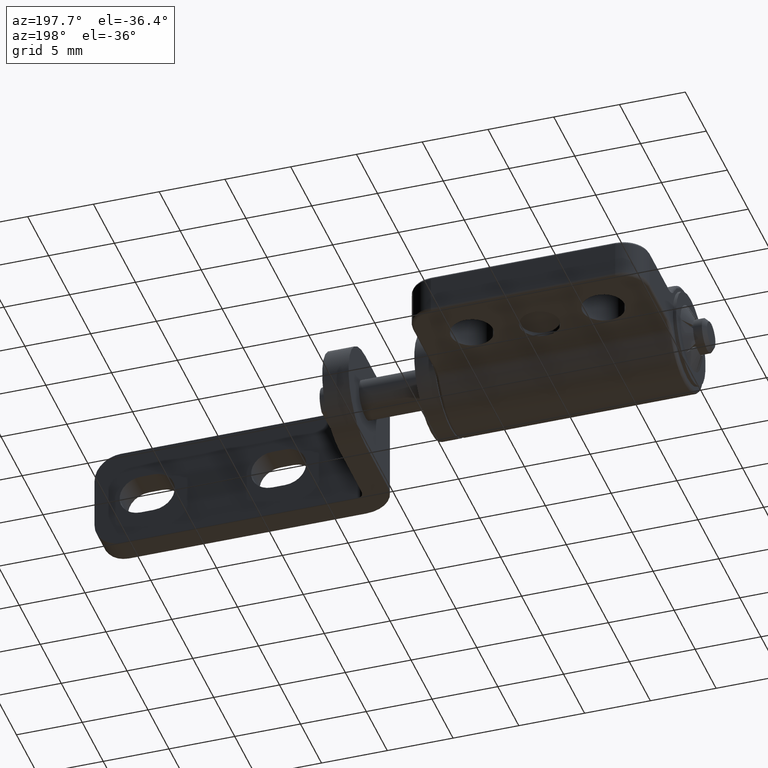
[diagram: clean part render]
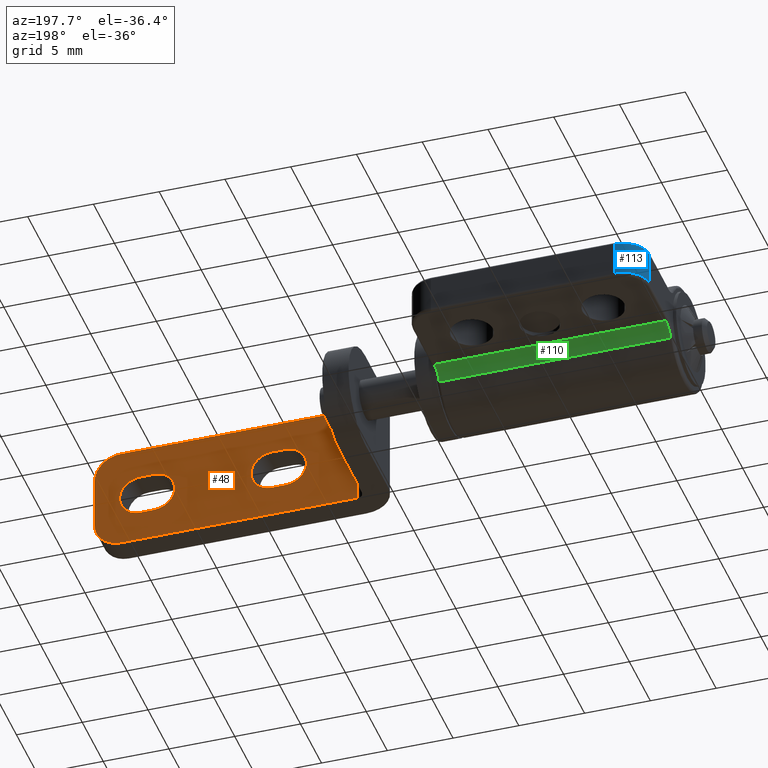
[diagram: same view with three faces highlighted in distinct colors, each labeled with its STEP entity id]
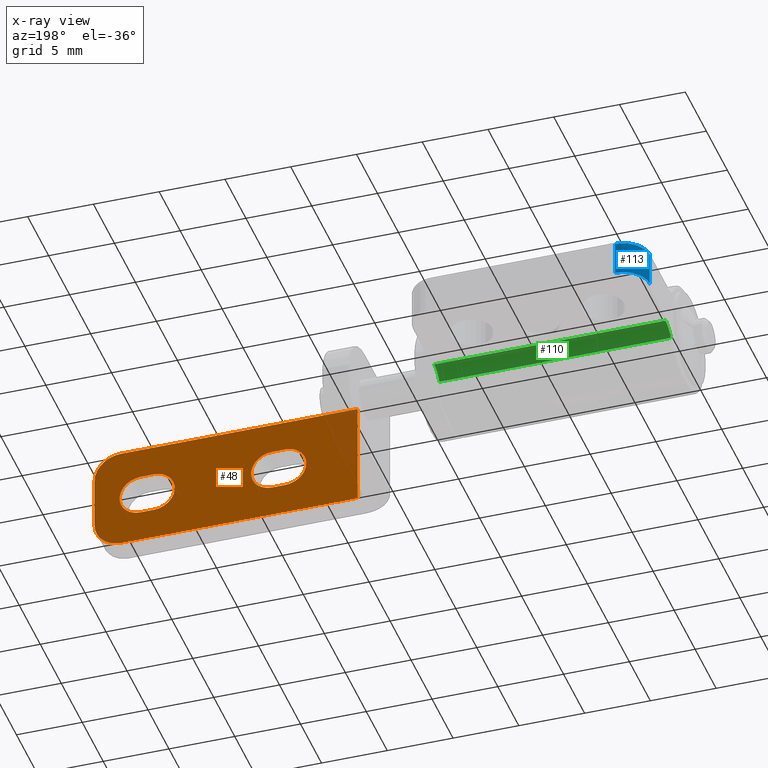
[diagram: x-ray of the same camera — body ghosted, the three highlighted faces saturated]
A machine part, auxiliary view with three faces highlighted in distinct colors.
The next image is the same camera in x-ray (body ghosted, the three faces saturated) — at least one of them is partly hidden behind the body in this view.
Their STEP definitions:

[orange] entity #48 — the highlighted planar face has unit normal (0, 1, 0).
#48=ADVANCED_FACE('',(#294,#295,#296),#293,.T.);
#293=PLANE('',#1991);
#294=FACE_OUTER_BOUND('',#1992,.T.);
#295=FACE_BOUND('',#1993,.T.);
#296=FACE_BOUND('',#1994,.T.);
#1988=CARTESIAN_POINT('',(1.60000000000E+01,-6.00000000000E+00,-4.80000000000E+00));
#1989=DIRECTION('',(0.00000000000E+00,1.00000000000E+00,6.73964954926E-17));
#1990=DIRECTION('',(0.00000000000E+00,-6.73964954926E-17,1.00000000000E+00));
#1991=AXIS2_PLACEMENT_3D('',#1988,#1989,#1990);
#1992=EDGE_LOOP('',(#3192,#3193,#3194,#3195,#3196,#3197));
#1993=EDGE_LOOP('',(#3198,#3199,#3200,#3201));
#1994=EDGE_LOOP('',(#3202,#3203,#3204,#3205));
#3192=ORIENTED_EDGE('',*,*,#4111,.F.);
#3193=ORIENTED_EDGE('',*,*,#4121,.T.);
#3194=ORIENTED_EDGE('',*,*,#4142,.F.);
#3195=ORIENTED_EDGE('',*,*,#4136,.T.);
#3196=ORIENTED_EDGE('',*,*,#4133,.F.);
#3197=ORIENTED_EDGE('',*,*,#4143,.T.);
#3198=ORIENTED_EDGE('',*,*,#4144,.T.);
#3199=ORIENTED_EDGE('',*,*,#4145,.T.);
#3200=ORIENTED_EDGE('',*,*,#4146,.T.);
#3201=ORIENTED_EDGE('',*,*,#4147,.T.);
#3202=ORIENTED_EDGE('',*,*,#4148,.T.);
#3203=ORIENTED_EDGE('',*,*,#4149,.T.);
#3204=ORIENTED_EDGE('',*,*,#4150,.T.);
#3205=ORIENTED_EDGE('',*,*,#4109,.T.);
#4109=EDGE_CURVE('',#4654,#4647,#4655,.T.);
#4111=EDGE_CURVE('',#4667,#4668,#4669,.T.);
#4121=EDGE_CURVE('',#4667,#4730,#4737,.T.);
#4133=EDGE_CURVE('',#4818,#4819,#4820,.T.);
#4136=EDGE_CURVE('',#4838,#4819,#4839,.T.);
#4142=EDGE_CURVE('',#4838,#4730,#4879,.T.);
#4143=EDGE_CURVE('',#4818,#4668,#4885,.T.);
#4144=EDGE_CURVE('',#4891,#4892,#4893,.T.);
#4145=EDGE_CURVE('',#4892,#4899,#4900,.T.);
#4146=EDGE_CURVE('',#4899,#4906,#4907,.T.);
#4147=EDGE_CURVE('',#4906,#4891,#4913,.T.);
#4148=EDGE_CURVE('',#4647,#4919,#4920,.T.);
#4149=EDGE_CURVE('',#4919,#4926,#4927,.T.);
#4150=EDGE_CURVE('',#4926,#4654,#4933,.T.);
#4647=VERTEX_POINT('',#7800);
#4654=VERTEX_POINT('',#7804);
#4655=LINE('',#7805,#7806);
#4667=VERTEX_POINT('',#7811);
#4668=VERTEX_POINT('',#7812);
#4669=CIRCLE('',#7816,2.00000000000E+00);
#4730=VERTEX_POINT('',#7850);
#4737=LINE('',#7855,#7856);
#4818=VERTEX_POINT('',#7905);
#4819=VERTEX_POINT('',#7906);
#4820=CIRCLE('',#7910,2.00000000000E+00);
#4838=VERTEX_POINT('',#7917);
#4839=LINE('',#7918,#7919);
#4879=LINE('',#7942,#7943);
#4885=LINE('',#7945,#7946);
#4891=VERTEX_POINT('',#7948);
#4892=VERTEX_POINT('',#7949);
#4893=CIRCLE('',#7953,1.60000000000E+00);
#4899=VERTEX_POINT('',#7954);
#4900=LINE('',#7955,#7956);
#4906=VERTEX_POINT('',#7958);
#4907=CIRCLE('',#7962,1.60000000000E+00);
#4913=LINE('',#7963,#7964);
#4919=VERTEX_POINT('',#7966);
#4920=CIRCLE('',#7970,1.60000000000E+00);
#4926=VERTEX_POINT('',#7971);
#4927=LINE('',#7972,#7973);
#4933=CIRCLE('',#7978,1.60000000000E+00);
#7800=CARTESIAN_POINT('',(3.45000000000E+01,-6.00000000000E+00,-1.60000000000E+00));
#7804=CARTESIAN_POINT('',(3.35000000000E+01,-6.00000000000E+00,-1.60000000000E+00));
#7805=CARTESIAN_POINT('',(3.35000000000E+01,-6.00000000000E+00,-1.60000000000E+00));
#7806=VECTOR('',#7807,1.00000000000E+00);
#7807=DIRECTION('',(1.00000000000E+00,0.00000000000E+00,0.00000000000E+00));
#7811=CARTESIAN_POINT('',(3.60000000000E+01,-6.00000000000E+00,-4.00000000000E+00));
#7812=CARTESIAN_POINT('',(3.80000000000E+01,-6.00000000000E+00,-2.00000000000E+00));
#7813=CARTESIAN_POINT('',(3.60000000000E+01,-6.00000000000E+00,-2.00000000000E+00));
#7814=DIRECTION('',(0.00000000000E+00,-1.00000000000E+00,0.00000000000E+00));
#7815=DIRECTION('',(-0.00000000000E+00,-0.00000000000E+00,1.00000000000E+00));
#7816=AXIS2_PLACEMENT_3D('',#7813,#7814,#7815);
#7850=CARTESIAN_POINT('',(1.80000000000E+01,-6.00000000000E+00,-4.00000000000E+00));
#7855=CARTESIAN_POINT('',(3.60000000000E+01,-6.00000000000E+00,-4.00000000000E+00));
#7856=VECTOR('',#7857,1.80000000000E+01);
#7857=DIRECTION('',(-1.00000000000E+00,0.00000000000E+00,0.00000000000E+00));
#7905=CARTESIAN_POINT('',(3.80000000000E+01,-6.00000000000E+00,2.00000000000E+00));
#7906=CARTESIAN_POINT('',(3.60000000000E+01,-6.00000000000E+00,4.00000000000E+00));
#7907=CARTESIAN_POINT('',(3.60000000000E+01,-6.00000000000E+00,2.00000000000E+00));
#7908=DIRECTION('',(0.00000000000E+00,-1.00000000000E+00,-6.73964954926E-17));
#7909=DIRECTION('',(-1.00000000000E+00,-0.00000000000E+00,-0.00000000000E+00));
#7910=AXIS2_PLACEMENT_3D('',#7907,#7908,#7909);
#7917=CARTESIAN_POINT('',(1.80000000000E+01,-6.00000000000E+00,4.00000000000E+00));
#7918=CARTESIAN_POINT('',(1.80000000000E+01,-6.00000000000E+00,4.00000000000E+00));
#7919=VECTOR('',#7920,1.80000000000E+01);
#7920=DIRECTION('',(1.00000000000E+00,0.00000000000E+00,0.00000000000E+00));
#7942=CARTESIAN_POINT('',(1.80000000000E+01,-6.00000000000E+00,4.00000000000E+00));
#7943=VECTOR('',#7944,8.00000000000E+00);
#7944=DIRECTION('',(0.00000000000E+00,0.00000000000E+00,-1.00000000000E+00));
#7945=CARTESIAN_POINT('',(3.80000000000E+01,-6.00000000000E+00,2.00000000000E+00));
#7946=VECTOR('',#7947,4.00000000000E+00);
#7947=DIRECTION('',(0.00000000000E+00,0.00000000000E+00,-1.00000000000E+00));
#7948=CARTESIAN_POINT('',(2.45000000000E+01,-6.00000000000E+00,-1.60000000000E+00));
#7949=CARTESIAN_POINT('',(2.45000000000E+01,-6.00000000000E+00,1.60000000000E+00));
#7950=CARTESIAN_POINT('',(2.45000000000E+01,-6.00000000000E+00,-3.73504804683E-15));
#7951=DIRECTION('',(0.00000000000E+00,-1.00000000000E+00,-0.00000000000E+00));
#7952=DIRECTION('',(-1.22460635382E-16,0.00000000000E+00,-1.00000000000E+00));
#7953=AXIS2_PLACEMENT_3D('',#7950,#7951,#7952);
#7954=CARTESIAN_POINT('',(2.35000000000E+01,-6.00000000000E+00,1.60000000000E+00));
#7955=CARTESIAN_POINT('',(2.45000000000E+01,-6.00000000000E+00,1.60000000000E+00));
#7956=VECTOR('',#7957,1.00000000000E+00);
#7957=DIRECTION('',(-1.00000000000E+00,0.00000000000E+00,0.00000000000E+00));
#7958=CARTESIAN_POINT('',(2.35000000000E+01,-6.00000000000E+00,-1.60000000000E+00));
#7959=CARTESIAN_POINT('',(2.35000000000E+01,-6.00000000000E+00,-3.73504804683E-15));
#7960=DIRECTION('',(0.00000000000E+00,-1.00000000000E+00,0.00000000000E+00));
#7961=DIRECTION('',(1.22460635382E-16,0.00000000000E+00,1.00000000000E+00));
#7962=AXIS2_PLACEMENT_3D('',#7959,#7960,#7961);
#7963=CARTESIAN_POINT('',(2.35000000000E+01,-6.00000000000E+00,-1.60000000000E+00));
#7964=VECTOR('',#7965,1.00000000000E+00);
#7965=DIRECTION('',(1.00000000000E+00,0.00000000000E+00,0.00000000000E+00));
#7966=CARTESIAN_POINT('',(3.45000000000E+01,-6.00000000000E+00,1.60000000000E+00));
#7967=CARTESIAN_POINT('',(3.45000000000E+01,-6.00000000000E+00,-6.51060560839E-15));
#7968=DIRECTION('',(0.00000000000E+00,-1.00000000000E+00,0.00000000000E+00));
#7969=DIRECTION('',(-0.00000000000E+00,-0.00000000000E+00,1.00000000000E+00));
#7970=AXIS2_PLACEMENT_3D('',#7967,#7968,#7969);
#7971=CARTESIAN_POINT('',(3.35000000000E+01,-6.00000000000E+00,1.60000000000E+00));
#7972=CARTESIAN_POINT('',(3.45000000000E+01,-6.00000000000E+00,1.60000000000E+00));
#7973=VECTOR('',#7974,1.00000000000E+00);
#7974=DIRECTION('',(-1.00000000000E+00,0.00000000000E+00,9.99200722163E-15));
#7975=CARTESIAN_POINT('',(3.35000000000E+01,-6.00000000000E+00,-5.40038258377E-15));
#7976=DIRECTION('',(0.00000000000E+00,-1.00000000000E+00,0.00000000000E+00));
#7977=DIRECTION('',(-0.00000000000E+00,-0.00000000000E+00,-1.00000000000E+00));
#7978=AXIS2_PLACEMENT_3D('',#7975,#7976,#7977);

[blue] entity #113 — the highlighted cylindrical surface (edge-blend (fillet) strip) has radius 2 mm, axis along (-0, -0, 1).
#113=ADVANCED_FACE('',(#948),#947,.T.);
#947=CYLINDRICAL_SURFACE('',#2562,2.00000000000E+00);
#948=FACE_OUTER_BOUND('',#2563,.T.);
#2559=CARTESIAN_POINT('',(-7.00000000000E+00,9.00000000000E+00,0.00000000000E+00));
#2560=DIRECTION('',(-0.00000000000E+00,-0.00000000000E+00,1.00000000000E+00));
#2561=DIRECTION('',(2.22044604925E-16,1.00000000000E+00,0.00000000000E+00));
#2562=AXIS2_PLACEMENT_3D('',#2559,#2560,#2561);
#2563=EDGE_LOOP('',(#3532,#3533,#3534,#3535));
#3532=ORIENTED_EDGE('',*,*,#4337,.F.);
#3533=ORIENTED_EDGE('',*,*,#4368,.T.);
#3534=ORIENTED_EDGE('',*,*,#4355,.F.);
#3535=ORIENTED_EDGE('',*,*,#4369,.T.);
#4337=EDGE_CURVE('',#6182,#6162,#6189,.T.);
#4355=EDGE_CURVE('',#6302,#6282,#6309,.T.);
#4368=EDGE_CURVE('',#6182,#6282,#6389,.T.);
#4369=EDGE_CURVE('',#6302,#6162,#6395,.T.);
#6162=VERTEX_POINT('',#8737);
#6182=VERTEX_POINT('',#8749);
#6189=CIRCLE('',#8757,2.00000000000E+00);
#6282=VERTEX_POINT('',#8817);
#6302=VERTEX_POINT('',#8829);
#6309=CIRCLE('',#8837,2.00000000000E+00);
#6389=LINE('',#8881,#8882);
#6395=LINE('',#8884,#8885);
#8737=CARTESIAN_POINT('',(-7.00000000000E+00,1.10000000000E+01,-1.30000000000E+00));
#8749=CARTESIAN_POINT('',(-9.00000000000E+00,9.00000000000E+00,-1.30000000000E+00));
#8754=CARTESIAN_POINT('',(-7.00000000000E+00,9.00000000000E+00,-1.30000000000E+00));
#8755=DIRECTION('',(0.00000000000E+00,0.00000000000E+00,-1.00000000000E+00));
#8756=DIRECTION('',(1.00000000000E+00,-0.00000000000E+00,-0.00000000000E+00));
#8757=AXIS2_PLACEMENT_3D('',#8754,#8755,#8756);
#8817=CARTESIAN_POINT('',(-9.00000000000E+00,9.00000000000E+00,1.30000000000E+00));
#8829=CARTESIAN_POINT('',(-7.00000000000E+00,1.10000000000E+01,1.30000000000E+00));
#8834=CARTESIAN_POINT('',(-7.00000000000E+00,9.00000000000E+00,1.30000000000E+00));
#8835=DIRECTION('',(0.00000000000E+00,-0.00000000000E+00,1.00000000000E+00));
#8836=DIRECTION('',(-0.00000000000E+00,-1.00000000000E+00,-0.00000000000E+00));
#8837=AXIS2_PLACEMENT_3D('',#8834,#8835,#8836);
#8881=CARTESIAN_POINT('',(-9.00000000000E+00,9.00000000000E+00,-1.30000000000E+00));
#8882=VECTOR('',#8883,2.60000000000E+00);
#8883=DIRECTION('',(0.00000000000E+00,0.00000000000E+00,1.00000000000E+00));
#8884=CARTESIAN_POINT('',(-7.00000000000E+00,1.10000000000E+01,1.30000000000E+00));
#8885=VECTOR('',#8886,2.60000000000E+00);
#8886=DIRECTION('',(0.00000000000E+00,0.00000000000E+00,-1.00000000000E+00));

[green] entity #110 — the highlighted cylindrical surface (edge-blend (fillet) strip) has radius 1.5 mm, axis along (1, -0, -0).
#110=ADVANCED_FACE('',(#918),#917,.F.);
#917=CYLINDRICAL_SURFACE('',#2547,1.50000000000E+00);
#918=FACE_OUTER_BOUND('',#2548,.T.);
#2544=CARTESIAN_POINT('',(0.00000000000E+00,4.60977222865E+00,-3.00000000000E+00));
#2545=DIRECTION('',(1.00000000000E+00,-0.00000000000E+00,-0.00000000000E+00));
#2546=DIRECTION('',(0.00000000000E+00,6.66133814775E-16,1.00000000000E+00));
#2547=AXIS2_PLACEMENT_3D('',#2544,#2545,#2546);
#2548=EDGE_LOOP('',(#3520,#3521,#3522,#3523));
#3520=ORIENTED_EDGE('',*,*,#4344,.F.);
#3521=ORIENTED_EDGE('',*,*,#4364,.T.);
#3522=ORIENTED_EDGE('',*,*,#4326,.F.);
#3523=ORIENTED_EDGE('',*,*,#4365,.T.);
#4326=EDGE_CURVE('',#6074,#6094,#6115,.T.);
#4344=EDGE_CURVE('',#6201,#6221,#6235,.T.);
#4364=EDGE_CURVE('',#6201,#6094,#6365,.T.);
#4365=EDGE_CURVE('',#6074,#6221,#6371,.T.);
#6074=VERTEX_POINT('',#8677);
#6094=VERTEX_POINT('',#8691);
#6115=CIRCLE('',#8709,1.50000000000E+00);
#6201=VERTEX_POINT('',#8762);
#6221=VERTEX_POINT('',#8774);
#6235=CIRCLE('',#8787,1.50000000000E+00);
#6365=LINE('',#8869,#8870);
#6371=LINE('',#8872,#8873);
#8677=CARTESIAN_POINT('',(8.80000000000E+00,3.35256162083E+00,-2.18181818182E+00));
#8691=CARTESIAN_POINT('',(8.80000000000E+00,4.60977222865E+00,-1.50000000000E+00));
#8706=CARTESIAN_POINT('',(8.80000000000E+00,4.60977222865E+00,-3.00000000000E+00));
#8707=DIRECTION('',(-1.00000000000E+00,0.00000000000E+00,0.00000000000E+00));
#8708=DIRECTION('',(-0.00000000000E+00,8.38140405208E-01,-5.45454545455E-01));
#8709=AXIS2_PLACEMENT_3D('',#8706,#8707,#8708);
#8762=CARTESIAN_POINT('',(-8.80000000000E+00,4.60977222865E+00,-1.50000000000E+00));
#8774=CARTESIAN_POINT('',(-8.80000000000E+00,3.35256162083E+00,-2.18181818182E+00));
#8784=CARTESIAN_POINT('',(-8.80000000000E+00,4.60977222865E+00,-3.00000000000E+00));
#8785=DIRECTION('',(1.00000000000E+00,0.00000000000E+00,-0.00000000000E+00));
#8786=DIRECTION('',(-0.00000000000E+00,-0.00000000000E+00,-1.00000000000E+00));
#8787=AXIS2_PLACEMENT_3D('',#8784,#8785,#8786);
#8869=CARTESIAN_POINT('',(-8.80000000000E+00,4.60977222865E+00,-1.50000000000E+00));
#8870=VECTOR('',#8871,1.76000000000E+01);
#8871=DIRECTION('',(1.00000000000E+00,0.00000000000E+00,0.00000000000E+00));
#8872=CARTESIAN_POINT('',(8.80000000000E+00,3.35256162083E+00,-2.18181818182E+00));
#8873=VECTOR('',#8874,1.76000000000E+01);
#8874=DIRECTION('',(-1.00000000000E+00,0.00000000000E+00,0.00000000000E+00));